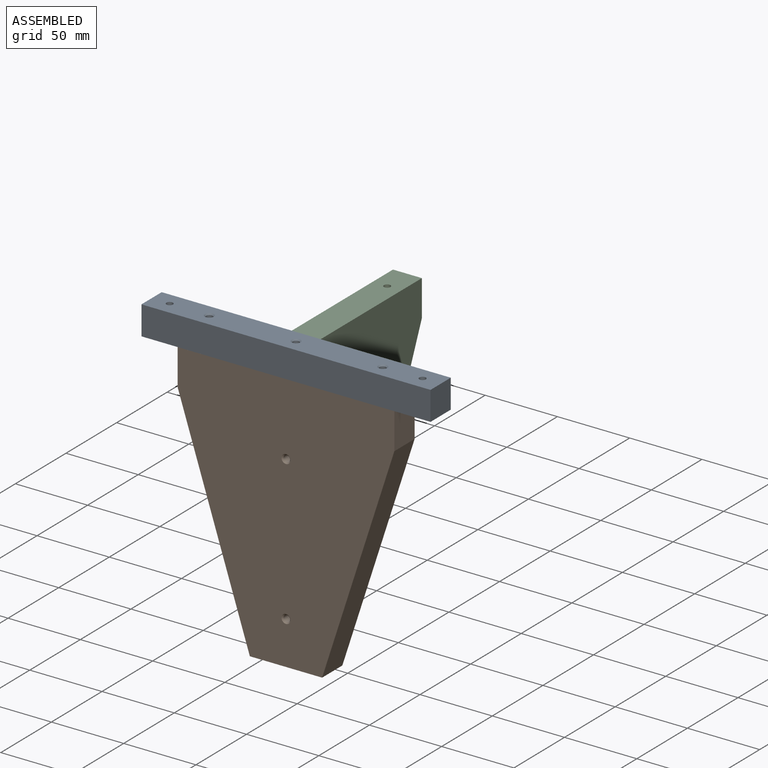
[diagram: assembled view]
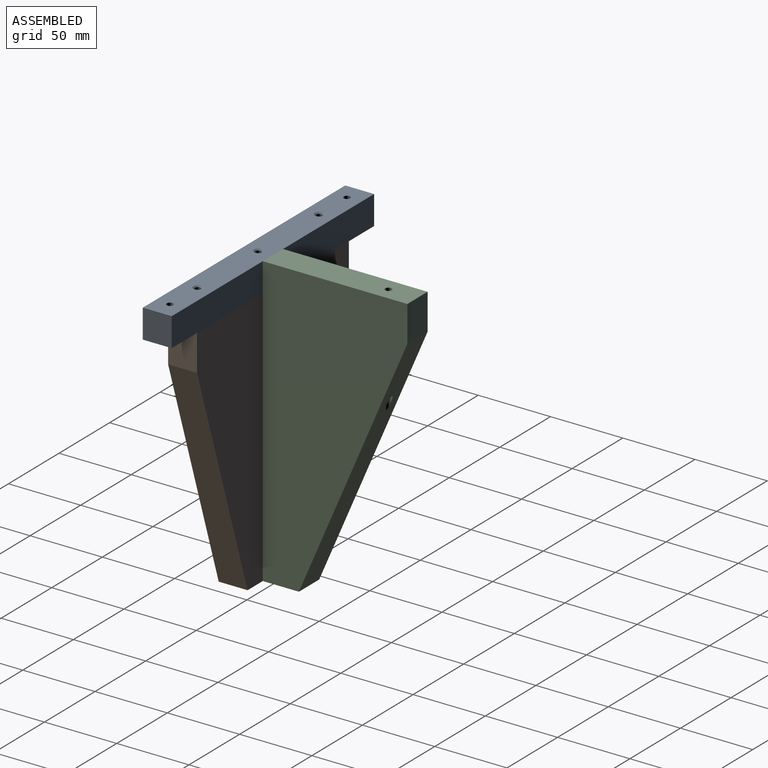
[diagram: assembled view, second angle]
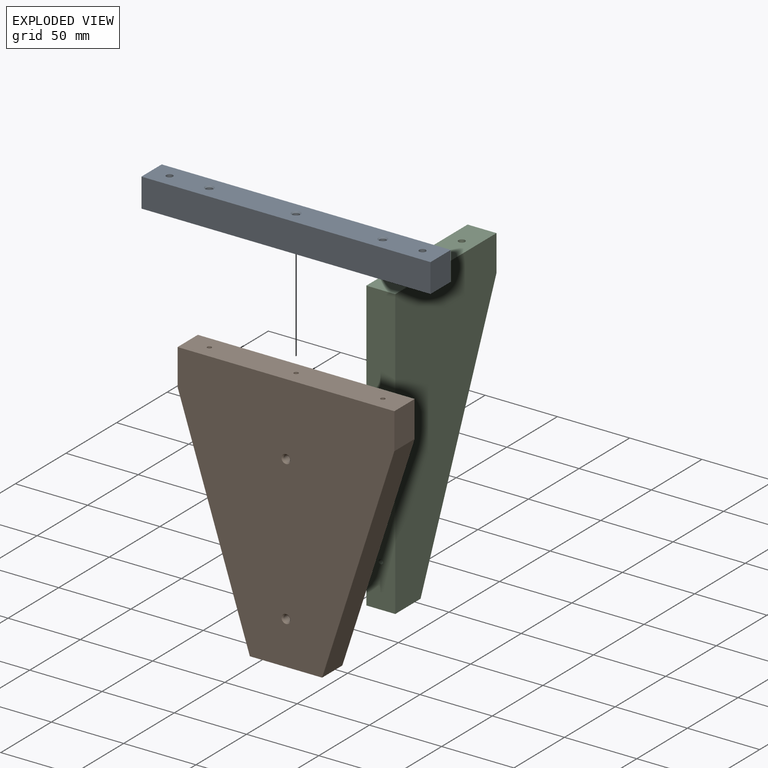
[diagram: exploded view]
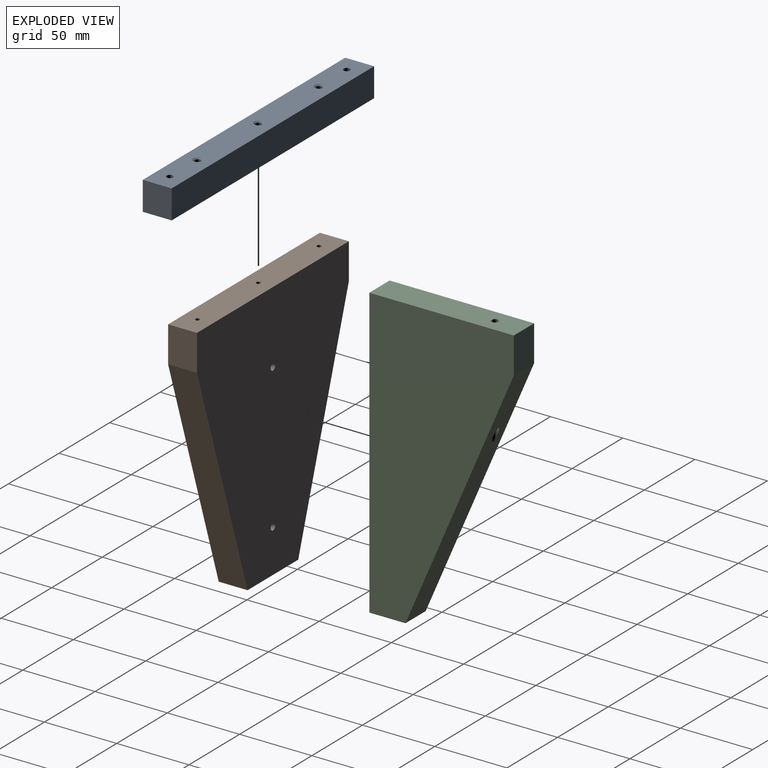
[diagram: exploded view, second angle]
ASSEMBLY  parts=3 mates=2
PART A: 16 faces, bbox 200x20x20 mm
  f0: plane 200x20mm, normal (0,0,1), area 3877.6mm2, adj f1,f3,f4,f5,f6,f8,f11,f13
  f1: plane 20x20mm, normal (-1,0,0), area 400mm2, adj f0,f2,f4,f5
  f2: plane 200x20mm, normal (0,0,-1), area 3891.9mm2, adj f1,f3,f4,f5,f7,f9,f10,f12
  f3: plane 20x20mm, normal (1,0,0), area 400mm2, adj f0,f2,f4,f5
  f4: plane 200x20mm, normal (0,1,0), area 4000mm2, adj f0,f1,f2,f3
  f5: plane 200x20mm, normal (0,-1,0), area 4000mm2, adj f0,f1,f2,f3
  f6: cylinder r=2.25mm len=19.15mm, axis (0,0,-1), area 270.7mm2, adj f0,f7
  f7: cone r=2.25mm half-angle=45deg, axis (0,0,-1), area 20.2mm2, adj f2,f6
  f8: cylinder r=2.25mm len=19.15mm, axis (0,0,-1), area 270.7mm2, adj f0,f9
  f9: cone r=2.25mm half-angle=45deg, axis (0,0,-1), area 20.2mm2, adj f2,f8
  f10: cylinder r=2.25mm len=19.15mm, axis (0,0,1), area 270.7mm2, adj f2,f11
  f11: cone r=2.25mm half-angle=45deg, axis (0,0,1), area 20.2mm2, adj f0,f10
  f12: cylinder r=2.25mm len=19.15mm, axis (0,0,1), area 270.7mm2, adj f2,f13
  f13: cone r=2.25mm half-angle=45deg, axis (0,0,1), area 20.2mm2, adj f0,f12
  f14: cylinder r=2.25mm len=19.15mm, axis (0,0,1), area 270.7mm2, adj f2,f15
  f15: cone r=2.25mm half-angle=45deg, axis (0,0,1), area 20.2mm2, adj f0,f14
PART B: 18 faces, bbox 150x20x180 mm
  f0: plane 150x20mm, normal (0,0,1), area 2978.8mm2, adj f1,f5,f6,f7,f9,f11,f13
  f1: plane 25x20mm, normal (-1,0,0), area 500mm2, adj f0,f2,f6,f7
  f2: plane 155x50mm, normal (-0.95,0,-0.31), area 3257.3mm2, adj f1,f3,f6,f7
  f3: plane 50x20mm, normal (0,0,-1), area 1000mm2, adj f2,f4,f6,f7
  f4: plane 155x50mm, normal (0.95,0,-0.31), area 3257.3mm2, adj f3,f5,f6,f7
  f5: plane 25x20mm, normal (1,0,0), area 500mm2, adj f0,f4,f6,f7
  f6: plane 180x150mm, normal (0,1,0), area 19218.2mm2, adj f0,f1,f2,f3,f4,f5,f14,f16
  f7: plane 180x150mm, normal (0,-1,0), area 19189.6mm2, adj f0,f1,f2,f3,f4,f5,f15,f17
  f8: cone r=0mm half-angle=59deg, axis (0,0,1), area 8.2mm2, adj f9
  f9: cylinder r=1.5mm len=30mm, axis (0,0,1), area 282.7mm2, adj f0,f8
  f10: cone r=0mm half-angle=59deg, axis (0,0,1), area 8.2mm2, adj f11
  f11: cylinder r=1.5mm len=30mm, axis (0,0,1), area 282.7mm2, adj f0,f10
  f12: cone r=0mm half-angle=59deg, axis (0,0,1), area 8.2mm2, adj f13
  f13: cylinder r=1.5mm len=30mm, axis (0,0,1), area 282.7mm2, adj f0,f12
  f14: cylinder r=2.25mm len=19.15mm, axis (0,-1,0), area 270.7mm2, adj f6,f15
  f15: cone r=2.25mm half-angle=45deg, axis (0,-1,0), area 20.2mm2, adj f7,f14
  f16: cylinder r=2.25mm len=19.15mm, axis (0,-1,0), area 270.7mm2, adj f6,f17
  f17: cone r=2.25mm half-angle=45deg, axis (0,-1,0), area 20.2mm2, adj f7,f16
PART C: 12 faces, bbox 22.2x102.2x202.2 mm
  f0: plane 100x20mm, normal (0,0,1), area 1984.1mm2, adj f1,f4,f5,f6,f7
  f1: plane 200x20mm, normal (0,-1,0), area 3985.9mm2, adj f0,f2,f5,f6,f9,f11
  f2: plane 25x20mm, normal (0,0,-1), area 500mm2, adj f1,f3,f5,f6
  f3: plane 177.21x77.21mm, normal (0,0.92,-0.39), area 3767.5mm2, adj f2,f4,f5,f6,f7
  f4: plane 25x20mm, normal (0,1,0), area 500mm2, adj f0,f3,f5,f6
  f5: plane 200x100mm, normal (1,0,0), area 13437.5mm2, adj f0,f1,f2,f3,f4
  f6: plane 200x100mm, normal (-1,0,0), area 13437.5mm2, adj f0,f1,f2,f3,f4
  f7: cylinder r=2.25mm len=76.94mm, axis (0,0,1), area 1015.7mm2, adj f0,f3
  f8: cone r=0mm half-angle=59deg, axis (0,-1,0), area 8.2mm2, adj f9
  f9: cylinder r=1.5mm len=20mm, axis (0,-1,0), area 188.5mm2, adj f1,f8
  f10: cone r=0mm half-angle=59deg, axis (0,-1,0), area 8.2mm2, adj f11
  f11: cylinder r=1.5mm len=20mm, axis (0,-1,0), area 188.5mm2, adj f1,f10
PLACE A t=(72.25,28.63,5.38)mm
PLACE B t=(72.25,28.63,-14.62)mm fixed
PLACE C t=(72.25,48.63,5.38)mm
MATE fastened B.f12 <-> A.f14  axis (0,0,1) through (12.25,38.63,-14.62)mm
MATE fastened B.f16 <-> C.f10  axis (0,1,0) through (72.25,48.63,-64.62)mm
